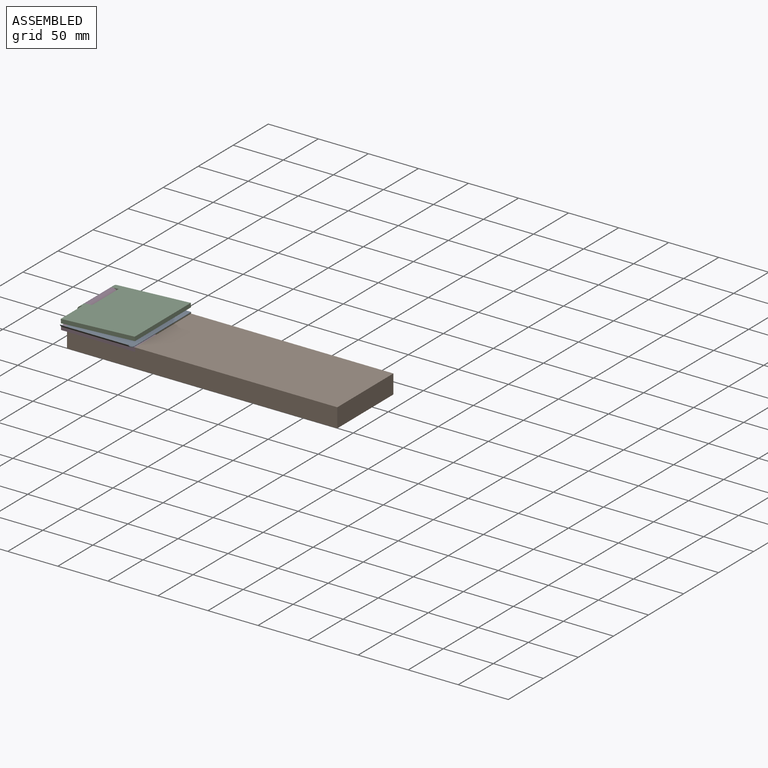
[diagram: assembled view]
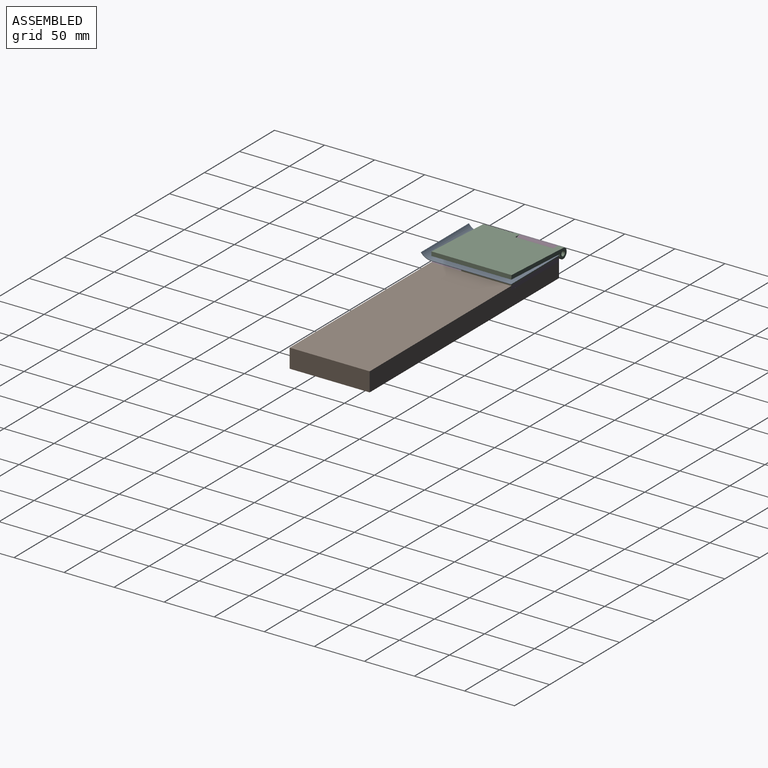
[diagram: assembled view, second angle]
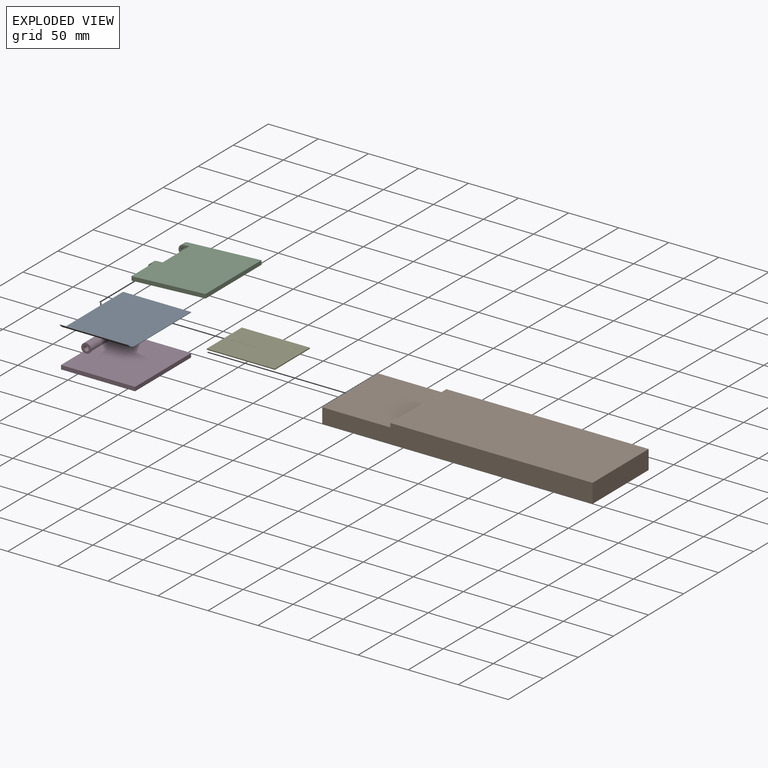
[diagram: exploded view]
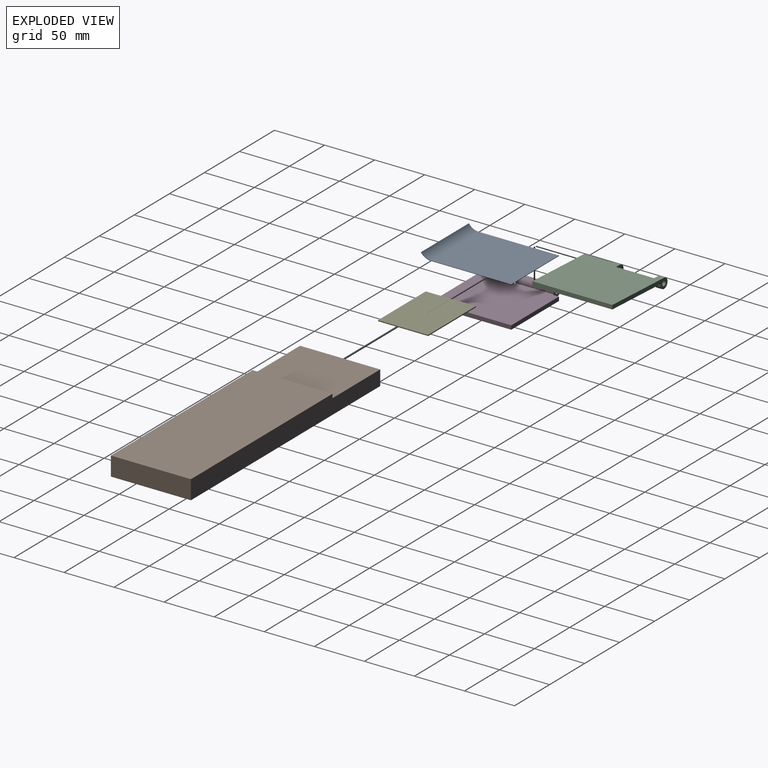
[diagram: exploded view, second angle]
ASSEMBLY  parts=5 mates=4
PART A: 8 faces, bbox 68x90.4x5.5 mm
  f0: plane 80x68mm, normal (0,0,-1), area 5440mm2, adj f1,f5,f6,f7
  f1: plane 68x0.5mm, normal (0,1,0), area 34mm2, adj f0,f2,f6,f7
  f2: plane 80x68mm, normal (0,0,1), area 5440mm2, adj f1,f3,f6,f7
  f3: cylinder r=12.5mm len=68mm, axis (-1,0,0), area 788.2mm2, adj f2,f4,f6,f7
  f4: plane 68x0.4mm, normal (0,-0.6,0.8), area 34mm2, adj f3,f5,f6,f7
  f5: cylinder r=13mm len=68mm, axis (-1,0,0), area 819.7mm2, adj f0,f4,f6,f7
  f6: plane 90.4x5.5mm, normal (1,0,0), area 45.9mm2, adj f0,f1,f2,f3,f4,f5
  f7: plane 90.4x5.5mm, normal (-1,0,0), area 45.9mm2, adj f0,f1,f2,f3,f4,f5
PART B: 8 faces, bbox 270x80x19 mm
  f0: plane 270x80mm, normal (0,0,-1), area 21600mm2, adj f1,f5,f6,f7
  f1: plane 80x19mm, normal (1,0,0), area 1520mm2, adj f0,f2,f6,f7
  f2: plane 202x80mm, normal (0,0,1), area 16160mm2, adj f1,f3,f6,f7
  f3: plane 80x4mm, normal (-1,0,0), area 320mm2, adj f2,f4,f6,f7
  f4: plane 80x68mm, normal (0,0,1), area 5440mm2, adj f3,f5,f6,f7
  f5: plane 80x15mm, normal (-1,0,0), area 1200mm2, adj f0,f4,f6,f7
  f6: plane 270x19mm, normal (0,-1,0), area 4858mm2, adj f0,f1,f2,f3,f4,f5
  f7: plane 270x19mm, normal (0,1,0), area 4858mm2, adj f0,f1,f2,f3,f4,f5
PART C: 15 faces, bbox 79x80x10 mm
  f0: plane 80x4mm, normal (1,0,0), area 320mm2, adj f4,f7,f10,f14
  f1: plane 11x10mm, normal (0,-1,0), area 68.2mm2, adj f2,f7,f8,f9,f14
  f2: plane 38x4mm, normal (-1,0,0), area 152mm2, adj f1,f3,f7,f14
  f3: plane 11x10mm, normal (0,1,0), area 68.2mm2, adj f2,f5,f6,f7,f14
  f4: plane 74x4mm, normal (0,-1,0), area 296mm2, adj f0,f7,f12,f14
  f5: cylinder r=2.5mm len=6mm, axis (0,1,0), area 94.2mm2, adj f3,f11,f13
  f6: cylinder r=5mm len=10mm, axis (0,1,0), area 147.4mm2, adj f3,f7,f11,f14
  f7: plane 80x74mm, normal (0,0,1), area 5692mm2, adj f0,f1,f2,f3,f4,f6,f8,f10
  f8: cylinder r=5mm len=10mm, axis (0,1,0), area 147.4mm2, adj f1,f7,f10,f14
  f9: cylinder r=2.5mm len=6mm, axis (0,1,0), area 94.2mm2, adj f1,f10
  f10: plane 79x10mm, normal (0,1,0), area 340.2mm2, adj f0,f7,f8,f9,f14
  f11: plane 10x10mm, normal (0,-1,0), area 46.7mm2, adj f5,f6,f12,f14
  f12: plane 30x4mm, normal (-1,0,0), area 120mm2, adj f4,f7,f11,f13,f14
  f13: plane 2.29x1.5mm, normal (0,1,0), area 2.5mm2, adj f5,f12,f14
  f14: plane 80x74mm, normal (0,0,-1), area 5633.2mm2, adj f0,f1,f2,f3,f4,f6,f8,f10
PART D: 13 faces, bbox 79x80x10 mm
  f0: plane 6x4mm, normal (-1,0,0), area 24mm2, adj f1,f6,f9,f12
  f1: plane 11x10mm, normal (0,1,0), area 68.2mm2, adj f0,f5,f6,f10,f12
  f2: plane 11x10mm, normal (0,-1,0), area 68.2mm2, adj f3,f5,f6,f10,f12
  f3: plane 6x4mm, normal (-1,0,0), area 24mm2, adj f2,f6,f11,f12
  f4: plane 30x4mm, normal (-1,0,0), area 120mm2, adj f6,f7,f11,f12
  f5: cylinder r=5mm len=38mm, axis (0,1,0), area 933.6mm2, adj f1,f2,f6,f12
  f6: plane 80x74mm, normal (0,0,-1), area 5848mm2, adj f0,f1,f2,f3,f4,f5,f7,f8
  f7: plane 74x4mm, normal (0,-1,0), area 296mm2, adj f4,f6,f8,f12
  f8: plane 80x4mm, normal (1,0,0), area 320mm2, adj f6,f7,f9,f12
  f9: plane 68x4mm, normal (0,1,0), area 272mm2, adj f0,f6,f8,f12
  f10: cylinder r=2.5mm len=38mm, axis (0,1,0), area 596.9mm2, adj f1,f2
  f11: plane 6x4mm, normal (0,1,0), area 24mm2, adj f3,f4,f6,f12
  f12: plane 80x74mm, normal (0,0,1), area 5661.8mm2, adj f0,f1,f2,f3,f4,f5,f7,f8
PART E: 6 faces, bbox 68x50x1 mm
  f0: plane 68x50mm, normal (0,0,-1), area 3400mm2, adj f1,f3,f4,f5
  f1: plane 68x1mm, normal (0,1,0), area 68mm2, adj f0,f2,f4,f5
  f2: plane 68x50mm, normal (0,0,1), area 3400mm2, adj f1,f3,f4,f5
  f3: plane 68x1mm, normal (0,-1,0), area 68mm2, adj f0,f2,f4,f5
  f4: plane 50x1mm, normal (1,0,0), area 50mm2, adj f0,f1,f2,f3
  f5: plane 50x1mm, normal (-1,0,0), area 50mm2, adj f0,f1,f2,f3
PLACE A t=(-4.94,35.78,-20.66)mm
PLACE B t=(-4.94,35.78,-40.66)mm
PLACE C rot(axis=(0,-1,0),2.8deg) t=(-10.94,35.78,-20.66)mm
PLACE D t=(-10.94,35.78,-20.66)mm fixed
PLACE E t=(-4.94,35.78,-21.66)mm
MATE fastened A.f7 <-> E.f5  axis (-1,0,0) through (-4.94,35.78,-20.66)mm
MATE fastened E.f5 <-> D.f0  axis (-1,0,0) through (-4.94,35.78,-21.66)mm
MATE fastened D.f8 <-> B.f3  axis (1,0,0) through (63.06,-44.22,-25.66)mm
MATE revolute D.f10 <-> C.f5  axis (0,1,0) through (-10.94,29.78,-20.66)mm
